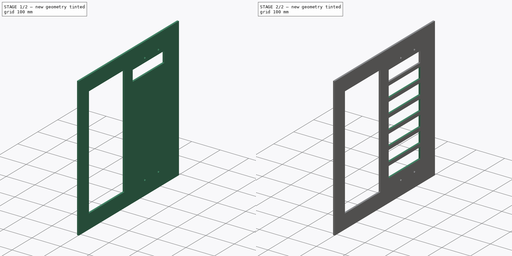
[diagram: build sequence overview — one tinted view per stage of 2, left to right]
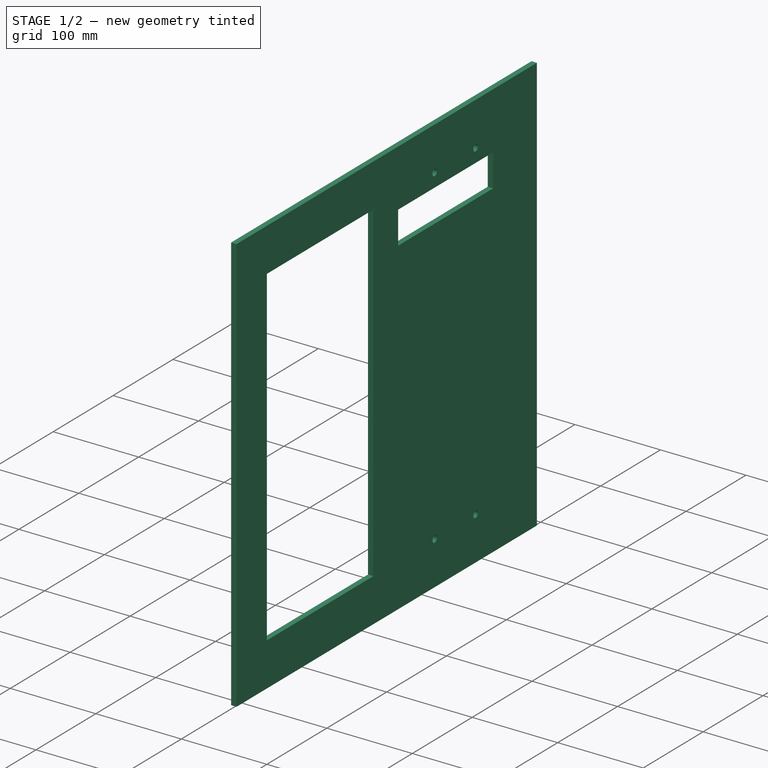
[diagram: stage 1 of 2 — iso view after this stage's code; geometry added in this stage tinted green]
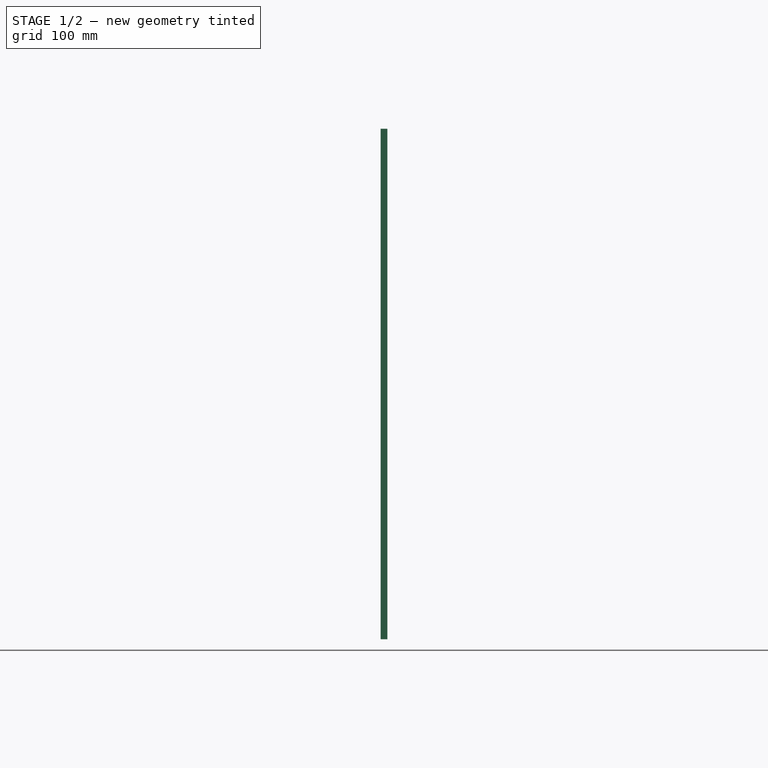
[diagram: stage 1 of 2 — front view after this stage's code; geometry added in this stage tinted green]
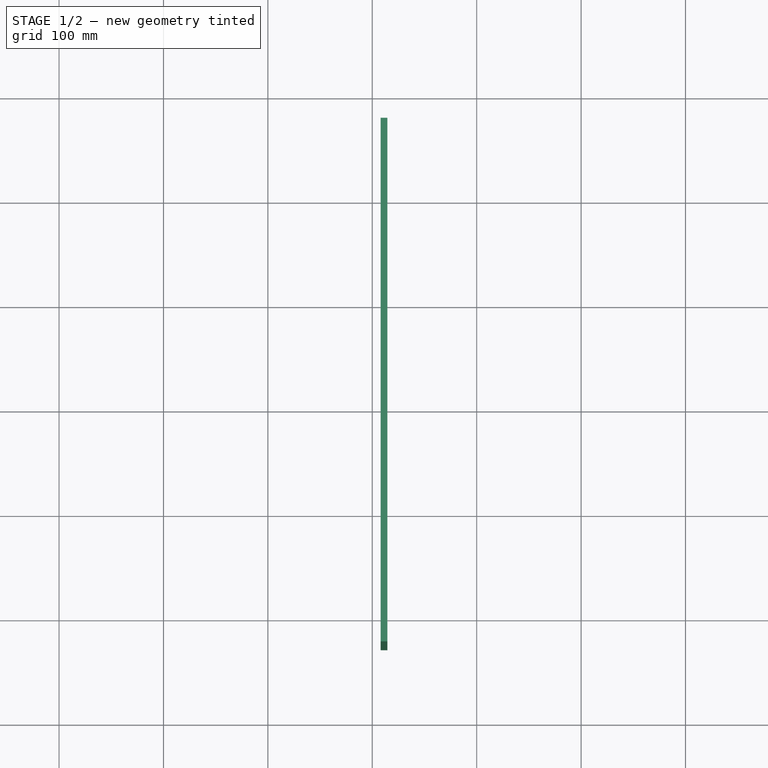
[diagram: stage 1 of 2 — top view after this stage's code; geometry added in this stage tinted green]
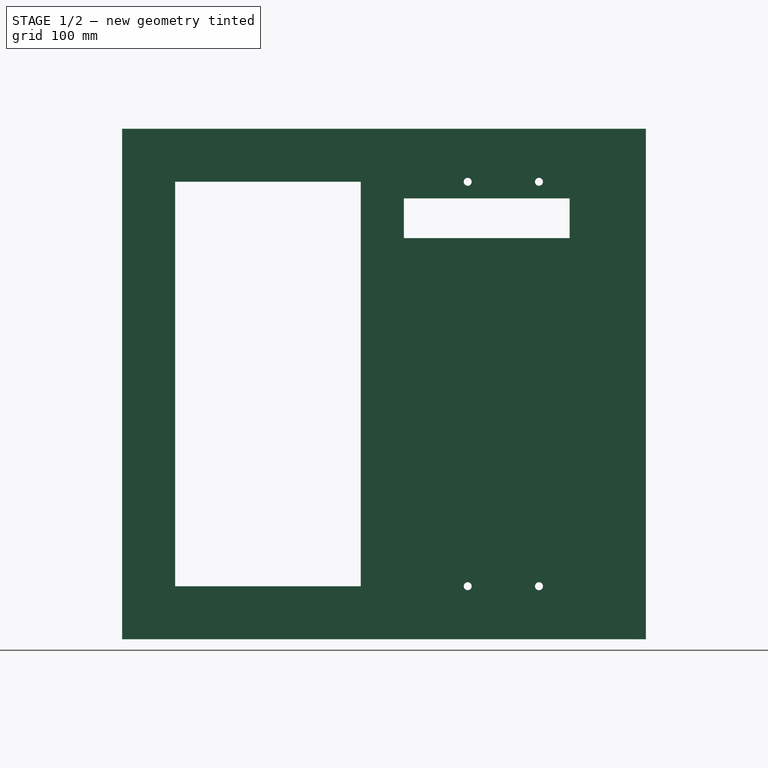
[diagram: stage 1 of 2 — right view after this stage's code; geometry added in this stage tinted green]
FCSTD DOCUMENT  (FreeCAD 0.16R6712 (Git))
Label: front
License: All rights reserved
LicenseURL: http://en.wikipedia.org/wiki/All_rights_reserved
objects: Sketcher::SketchObject×2, PartDesign::Pad×1, PartDesign::Pocket×1, PartDesign::LinearPattern×1
note: 7 computed .brp shape members not serialized (recipe doc carries the construction recipe); baked Part::Feature solids carry a one-line shape summary decoded from their .brp

FEATURE [Sketcher::SketchObject] Sketch001  label="frame front"
  Placement = pos=(914.4,1422.4,914.4) rot=(0.57735,0.57735,-0.57735;4.18879rad)
  sketch-geometry (20):
    g0: LineSegment StartX=-250.825 StartY=244.475 StartZ=0 EndX=250.825 EndY=244.475 EndZ=0
    g1: LineSegment StartX=250.825 StartY=244.475 StartZ=0 EndX=250.825 EndY=-244.475 EndZ=0
    g2: LineSegment StartX=250.825 StartY=-244.475 StartZ=0 EndX=-250.825 EndY=-244.475 EndZ=0
    g3: LineSegment StartX=-250.825 StartY=-244.475 StartZ=0 EndX=-250.825 EndY=244.475 EndZ=0
    g4: LineSegment StartX=-200.025 StartY=193.675 StartZ=0 EndX=-22.225 EndY=193.675 EndZ=0
    g5: LineSegment StartX=-22.225 StartY=-193.675 StartZ=0 EndX=-200.025 EndY=-193.675 EndZ=0
    g6: LineSegment StartX=-200.025 StartY=-193.675 StartZ=0 EndX=-200.025 EndY=193.675 EndZ=0
    g7: LineSegment [constr] StartX=-200.025 StartY=193.675 StartZ=0 EndX=-200.025 EndY=244.475 EndZ=0
    g8: LineSegment [constr] StartX=-200.025 StartY=193.675 StartZ=0 EndX=-250.825 EndY=193.675 EndZ=0
    g9: LineSegment [constr] StartX=-200.025 StartY=-193.675 StartZ=0 EndX=-200.025 EndY=-244.475 EndZ=0
    g10: LineSegment StartX=-22.225 StartY=193.675 StartZ=0 EndX=-22.225 EndY=-193.675 EndZ=0
    g11: LineSegment [constr] StartX=-22.225 StartY=193.675 StartZ=0 EndX=250.825 EndY=193.675 EndZ=0
    g12: LineSegment [constr] StartX=-22.225 StartY=-193.675 StartZ=0 EndX=250.825 EndY=-193.675 EndZ=0
    g13: LineSegment [constr] StartX=114.3 StartY=193.675 StartZ=0 EndX=114.3 EndY=-193.675 EndZ=0
    g14: Circle CenterX=80.1688 CenterY=193.675 CenterZ=0 NormalX=0 NormalY=0 NormalZ=1 Radius=3.81
    g15: Circle CenterX=148.431 CenterY=193.675 CenterZ=0 NormalX=0 NormalY=0 NormalZ=1 Radius=3.81
    g16: Circle CenterX=80.1688 CenterY=-193.675 CenterZ=0 NormalX=0 NormalY=0 NormalZ=1 Radius=3.81
    g17: Circle CenterX=148.431 CenterY=-193.675 CenterZ=0 NormalX=0 NormalY=0 NormalZ=1 Radius=3.81
    g18: LineSegment [constr] StartX=46.0375 StartY=193.675 StartZ=0 EndX=46.0375 EndY=-193.675 EndZ=0
    g19: LineSegment [constr] StartX=182.562 StartY=193.675 StartZ=0 EndX=182.562 EndY=-193.675 EndZ=0
  constraints (62):
    c: Coincident(g0,g1)
    c: Coincident(g1,g2)
    c: Coincident(g2,g3)
    c: Coincident(g3,g0)
    c: Horizontal(g0)
    c: Horizontal(g2)
    c: Vertical(g1)
    c: Vertical(g3)
    c: DistanceX(g0,g0) = 501.65  'outer edge'
    c: Symmetric(g2,g0,g-1)
    c: Coincident(g5,g6)
    c: Coincident(g6,g4)
    c: Horizontal(g4)
    c: Horizontal(g5)
    c: Vertical(g6)
    c: Equal(g0,g2)
    c: Equal(g3,g1)
    c: DistanceY(g3,g3) = 488.95  'width'
    c: Equal(g4,g5)
    c: Coincident(g7,g4)
    c: PointOnObject(g7,g0)
    c: Vertical(g7)
    c: Coincident(g8,g4)
    c: PointOnObject(g8,g3)
    c: Horizontal(g8)
    c: Equal(g7,g8)
    c: DistanceY(g7,g7) = 50.8
    c: Coincident(g9,g5)
    c: PointOnObject(g9,g2)
    c: Vertical(g9)
    c: Equal(g9,g7)
    c: DistanceX(g5,g5) = 177.8
    c: Coincident(g10,g4)
    c: Coincident(g10,g5)
    c: Coincident(g11,g4)
    c: PointOnObject(g11,g1)
    c: Horizontal(g11)
    c: Coincident(g12,g5)
    c: PointOnObject(g12,g1)
    c: Horizontal(g12)
    c: Vertical(g13)
    c: Symmetric(g5,g12,g13)
    c: Radius(g14) = 3.81
    c: Equal(g14,g15) = 3.81
    c: PointOnObject(g16,g12)
    c: Equal(g16,g14)
    c: PointOnObject(g17,g12)
    c: Equal(g17,g16)
    c: PointOnObject(g18,g12)
    c: Vertical(g18)
    c: PointOnObject(g19,g12)
    c: Vertical(g19)
    c: Symmetric(g13,g5,g18)
    c: Symmetric(g13,g12,g19)
    c: Symmetric(g18,g13,g16)
    c: Symmetric(g19,g13,g17)
    c: PointOnObject(g18,g11)
    c: PointOnObject(g14,g11)
    c: Symmetric(g18,g13,g14)
    c: PointOnObject(g19,g11)
    c: PointOnObject(g15,g11)
    c: Symmetric(g19,g13,g15)
FEATURE [PartDesign::Pad] Pad007  label=" frame front"
  Length = 6.35
  Length2 = 100
  Placement = pos=(914.4,1422.4,914.4) rot=(0.57735,0.57735,-0.57735;4.18879rad)
  Sketch = -> Sketch001
  Type = 0
FEATURE [Sketcher::SketchObject] Sketch005  label="grate pattern"
  Placement = pos=(914.4,1422.4,914.4) rot=(0.57735,0.57735,0.57735;2.0944rad)
  Support = -> Pad007 [Face13]
  sketch-geometry (10):
    g0: LineSegment [constr] StartX=-19.05 StartY=254 StartZ=0 EndX=247.65 EndY=254 EndZ=0
    g1: LineSegment [constr] StartX=247.65 StartY=254 StartZ=0 EndX=247.65 EndY=-254 EndZ=0
    g2: LineSegment [constr] StartX=247.65 StartY=-254 StartZ=0 EndX=-19.05 EndY=-254 EndZ=0
    g3: LineSegment [constr] StartX=-19.05 StartY=-254 StartZ=0 EndX=-19.05 EndY=254 EndZ=0
    g4: LineSegment StartX=19.05 StartY=177.8 StartZ=0 EndX=177.8 EndY=177.8 EndZ=0
    g5: LineSegment StartX=177.8 StartY=177.8 StartZ=0 EndX=177.8 EndY=139.7 EndZ=0
    g6: LineSegment StartX=177.8 StartY=139.7 StartZ=0 EndX=19.05 EndY=139.7 EndZ=0
    g7: LineSegment StartX=19.05 StartY=139.7 StartZ=0 EndX=19.05 EndY=177.8 EndZ=0
    g8: LineSegment [constr] StartX=177.8 StartY=177.8 StartZ=0 EndX=247.65 EndY=177.8 EndZ=0
    g9: LineSegment [constr] StartX=19.05 StartY=177.8 StartZ=0 EndX=-19.05 EndY=177.8 EndZ=0
  constraints (33):
    c: Coincident(g0,g1)
    c: Coincident(g1,g2)
    c: Coincident(g2,g3)
    c: Horizontal(g0)
    c: Horizontal(g2)
    c: Vertical(g1)
    c: Vertical(g3)
    c: Equal(g2,g0)
    c: Equal(g1,g3)
    c: DistanceY(g1,g1) = 508
    c: DistanceX(g2) = -19.05
    c: DistanceY(g2) = -254
    c: DistanceX(g0,g0) = 266.7
    c: Coincident(g4,g5)
    c: Coincident(g5,g6)
    c: Coincident(g6,g7)
    c: Coincident(g7,g4)
    c: Horizontal(g4)
    c: Horizontal(g6)
    c: Vertical(g5)
    c: Vertical(g7)
    c: Equal(g7,g5)
    c: Equal(g4,g6)
    c: Coincident(g8,g4)
    c: PointOnObject(g8,g1)
    c: Horizontal(g8)
    c: DistanceY(g7,g7) = 38.1
    c: Coincident(g9,g4)
    c: PointOnObject(g9,g3)
    c: Horizontal(g9)
    c: DistanceX(g6,g6) = 158.75
    c: DistanceY(g9,g0) = 76.2
    c: DistanceX(g8,g8) = 69.85
FEATURE [PartDesign::Pocket] Pocket  label="grate holes"
  Length = 6.35
  Placement = pos=(914.4,1422.4,914.4) rot=(0.57735,0.57735,-0.57735;4.18879rad)
  Sketch = -> Sketch005
  Type = 0
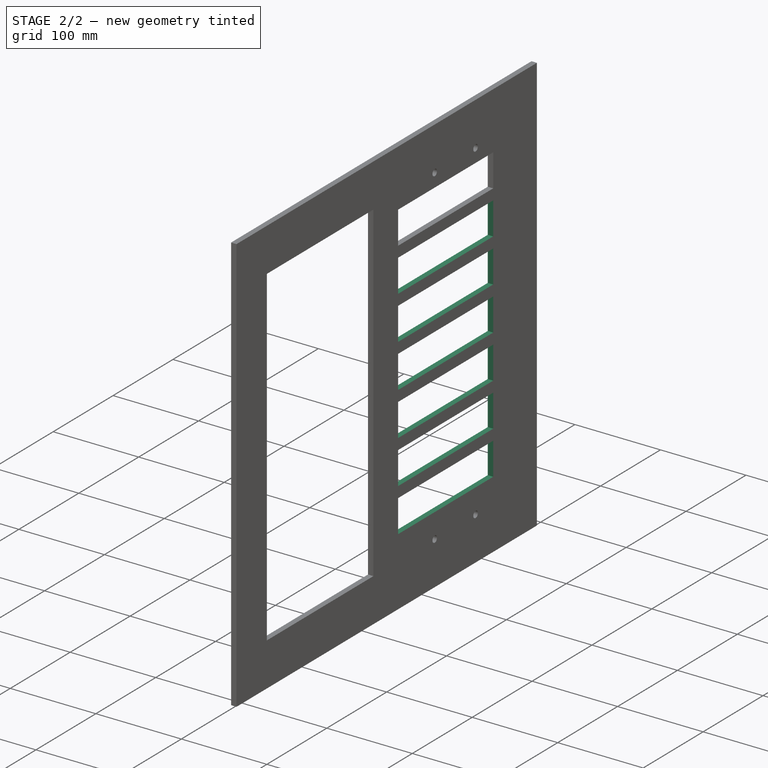
[diagram: stage 2 of 2 — iso view after this stage's code; geometry added in this stage tinted green]
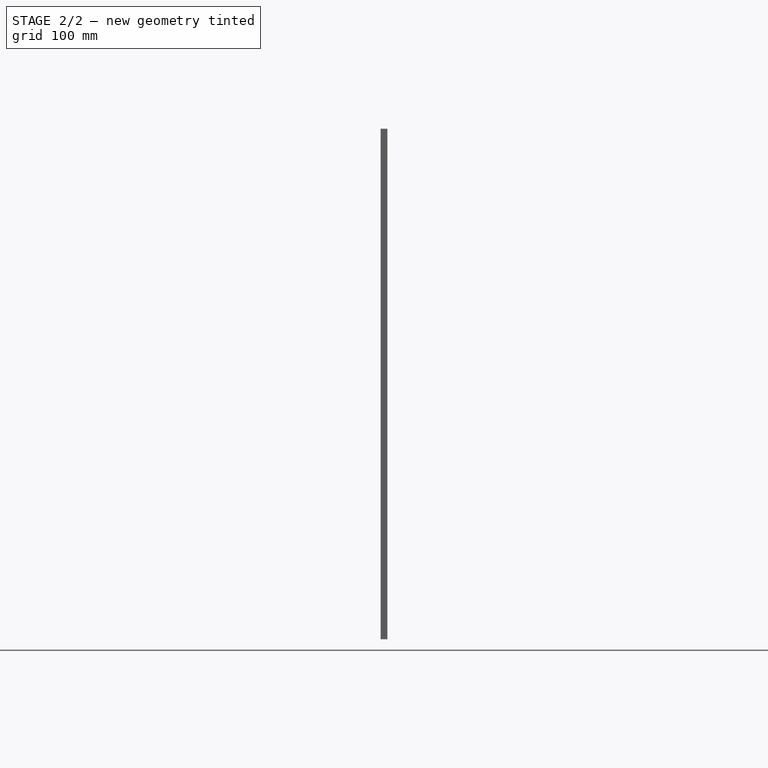
[diagram: stage 2 of 2 — front view after this stage's code; geometry added in this stage tinted green]
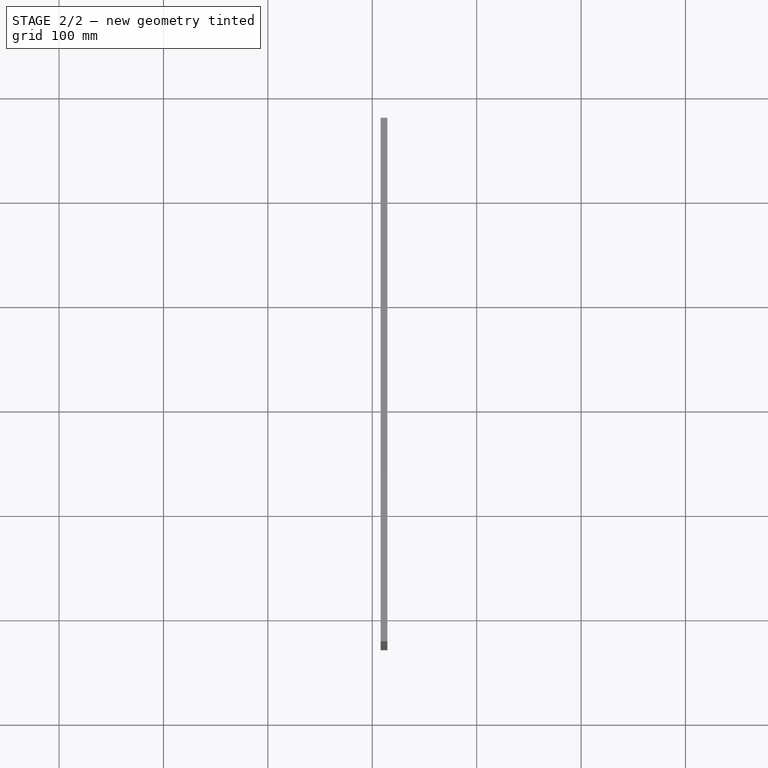
[diagram: stage 2 of 2 — top view after this stage's code; geometry added in this stage tinted green]
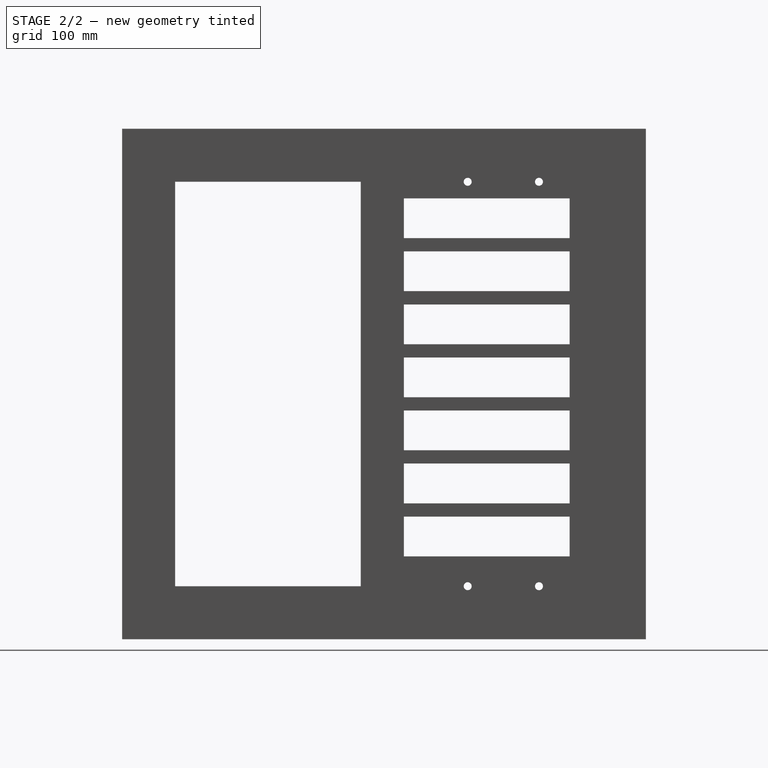
[diagram: stage 2 of 2 — right view after this stage's code; geometry added in this stage tinted green]
FEATURE [PartDesign::LinearPattern] LinearPattern
  Direction = -> Sketch005 [V_Axis]
  Length = 304.8
  Occurrences = 7
  Originals = -> [Pocket]
  Placement = pos=(914.4,1422.4,914.4) rot=(0.57735,0.57735,-0.57735;4.18879rad)
  Reversed = true
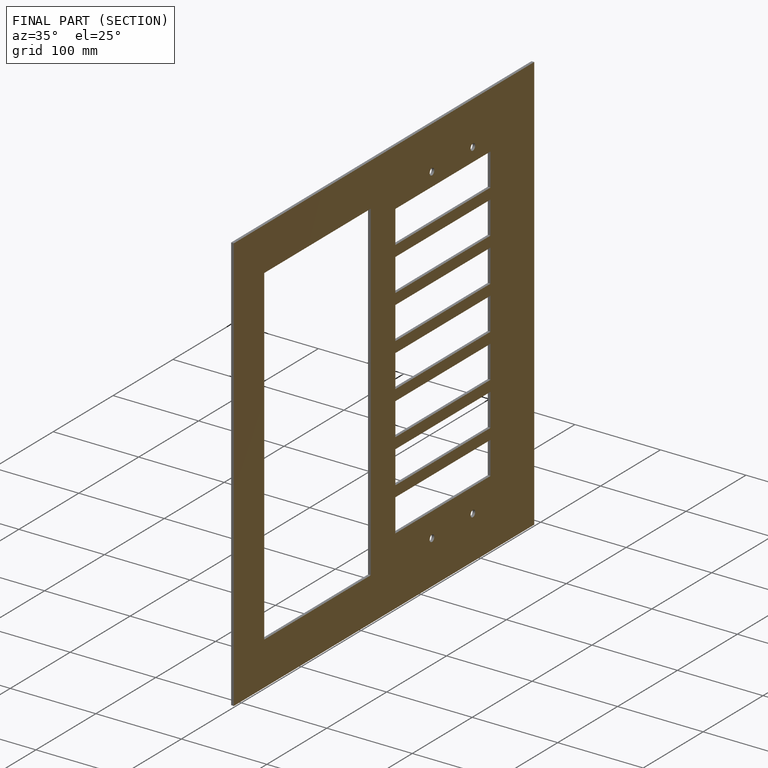
[diagram: finished part — half-section view (interior)]
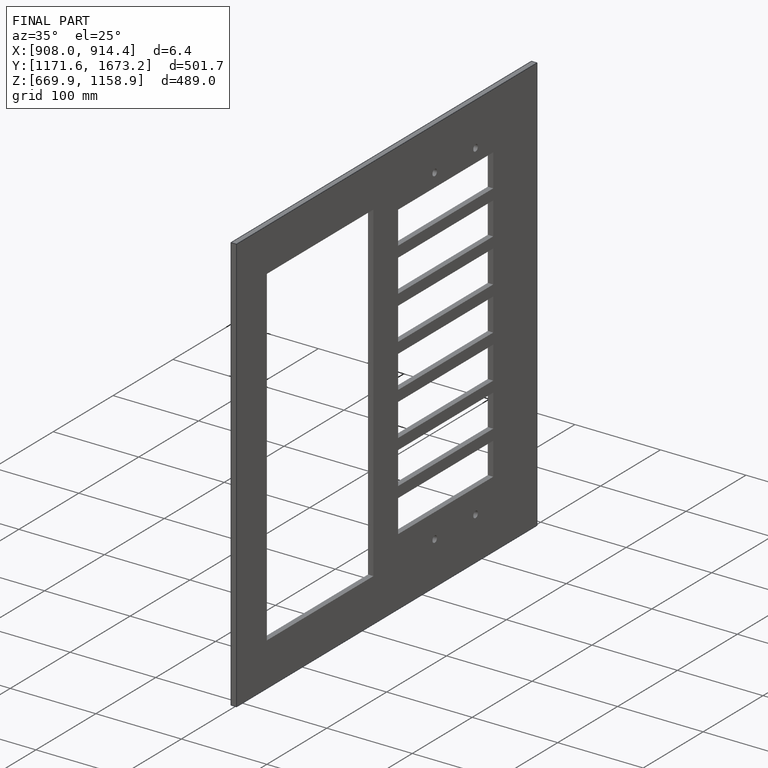
[diagram: finished part — iso view with bounding-box wireframe]
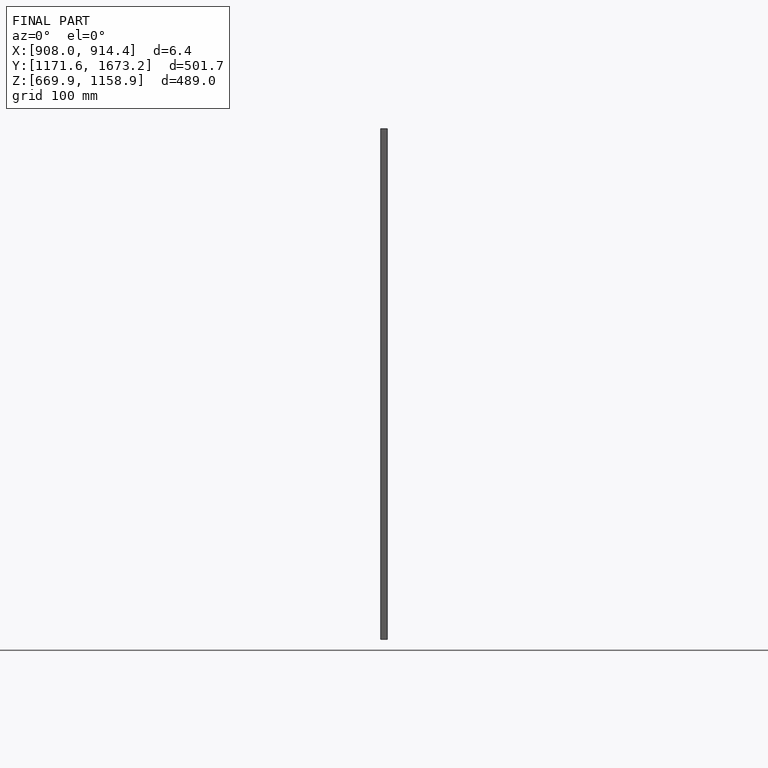
[diagram: finished part — front view with bounding-box wireframe]
